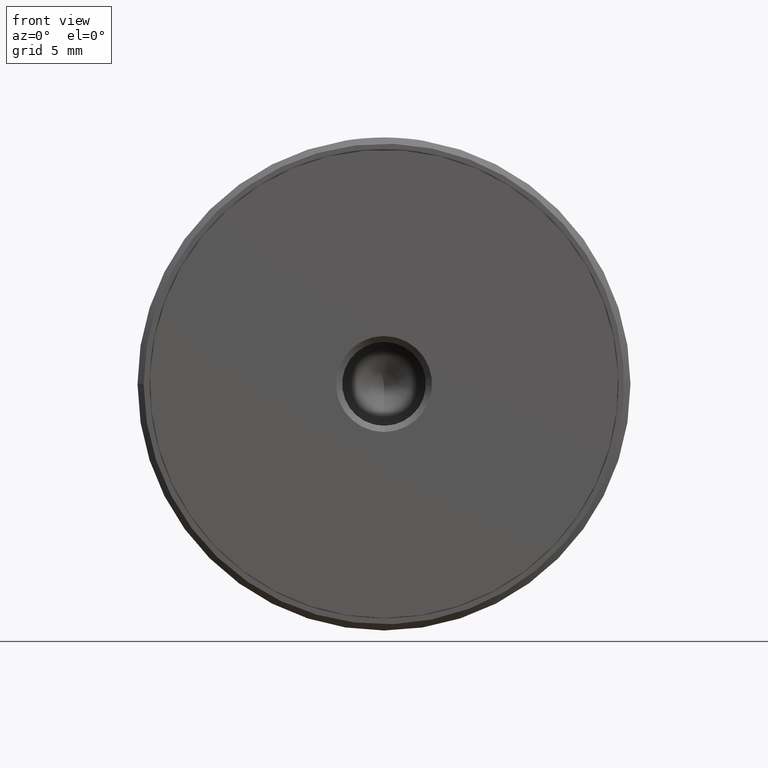
[diagram: clean part render]
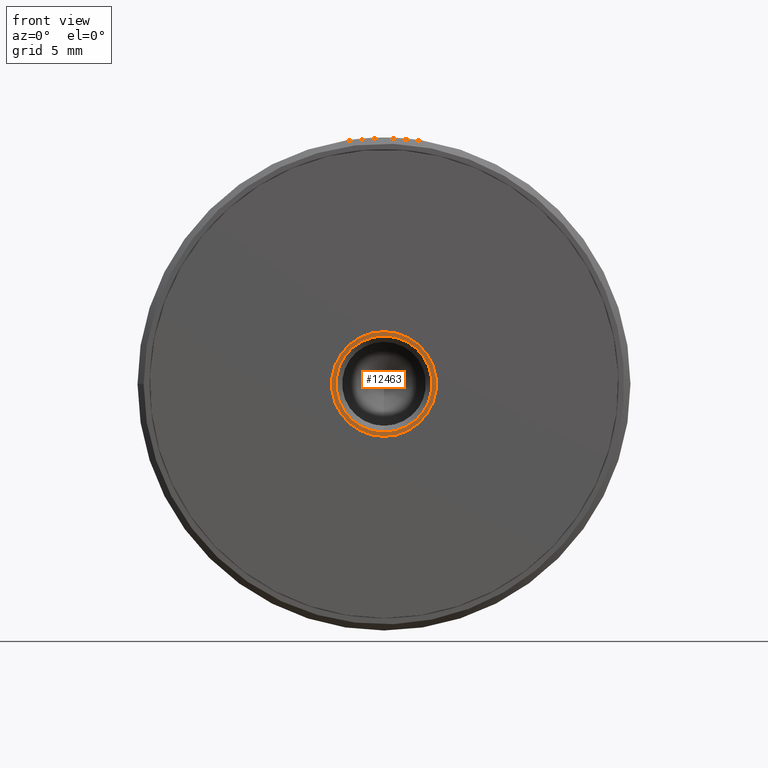
[diagram: same view with one face highlighted and labeled with its STEP entity id]
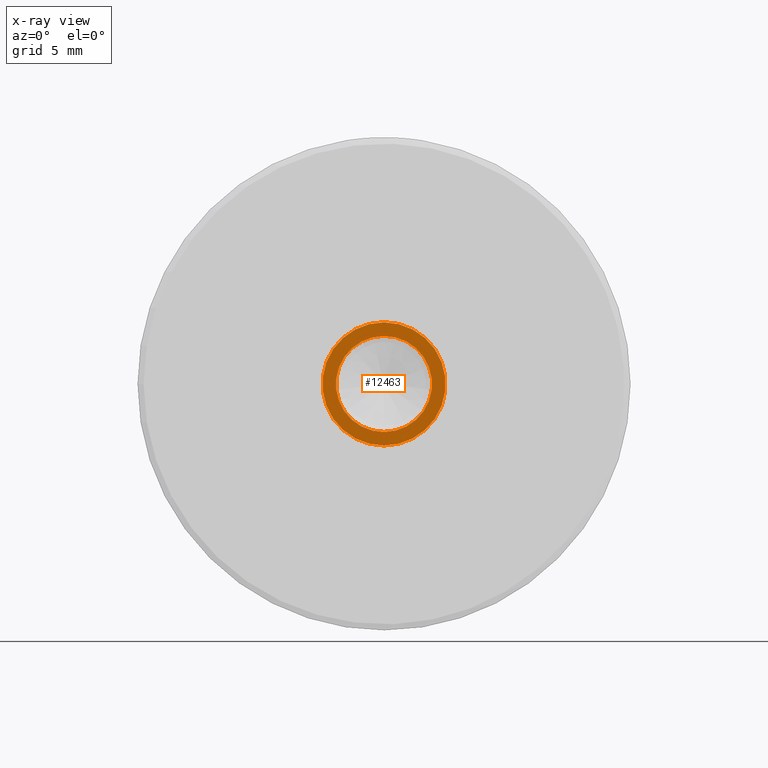
[diagram: x-ray of the same camera — body ghosted, the highlighted face saturated]
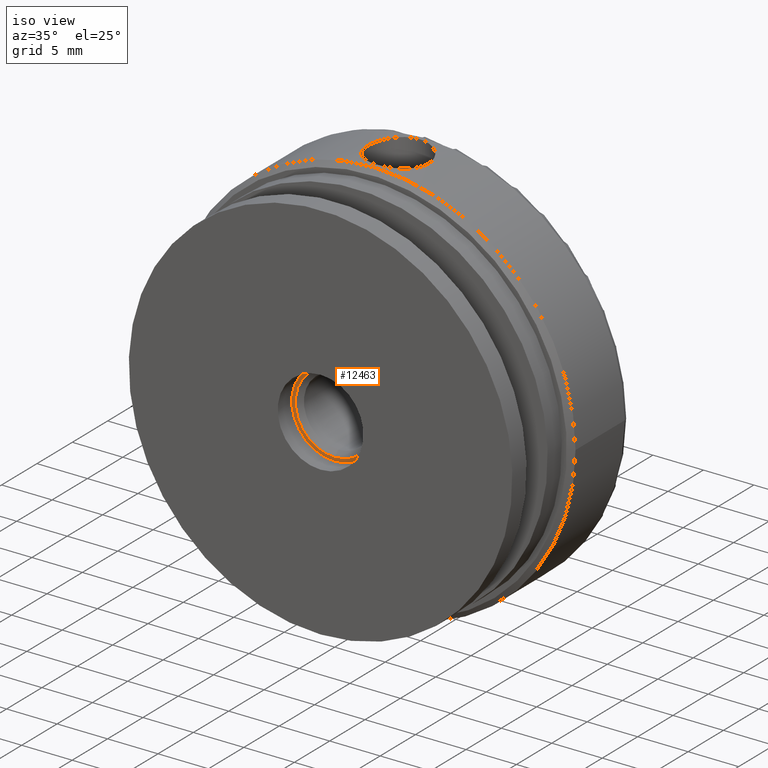
[diagram: same view with one face highlighted and labeled with its STEP entity id]
A machine part, front view. The second image highlights one B-rep face of the part: STEP entity #12463.
The next image is the same camera in x-ray: the body ghosted, the highlighted face saturated — about 0% of this face is hidden behind the body in this view.
A second angle (iso view) of the same face is appended — the face is thin or edge-on in the first view.
In plain terms, the highlighted planar face has unit normal (0, -1, 0).
Its self-contained STEP definition (entity closure, byte-faithful):
#933 = CARTESIAN_POINT ( 'NONE',  ( -6.938893903907228378E-15, -5.000000000000000888, 0.000000000000000000 ) ) ;
#1958 = FACE_BOUND ( 'NONE', #5551, .T. ) ;
#2099 = DIRECTION ( 'NONE',  ( 0.000000000000000000, 0.000000000000000000, -1.000000000000000000 ) ) ;
#2692 = VERTEX_POINT ( 'NONE', #10233 ) ;
#3429 = AXIS2_PLACEMENT_3D ( 'NONE', #9422, #7017, #8170 ) ;
#4329 = ORIENTED_EDGE ( 'NONE', *, *, #11467, .T. ) ;
#4687 = DIRECTION ( 'NONE',  ( -0.000000000000000000, 1.000000000000000000, -0.000000000000000000 ) ) ;
#4923 = AXIS2_PLACEMENT_3D ( 'NONE', #933, #4687, #2099 ) ;
#5131 = AXIS2_PLACEMENT_3D ( 'NONE', #15321, #9626, #8531 ) ;
#5550 = FACE_OUTER_BOUND ( 'NONE', #11149, .T. ) ;
#5551 = EDGE_LOOP ( 'NONE', ( #4329 ) ) ;
#5937 = CIRCLE ( 'NONE', #4923, 3.900000000000007017 ) ;
#7017 = DIRECTION ( 'NONE',  ( 0.000000000000000000, -1.000000000000000000, 0.000000000000000000 ) ) ;
#7043 = ORIENTED_EDGE ( 'NONE', *, *, #12432, .T. ) ;
#7837 = CARTESIAN_POINT ( 'NONE',  ( -6.938893903907228378E-15, -5.000000000000000888, -3.900000000000007017 ) ) ;
#8170 = DIRECTION ( 'NONE',  ( 0.000000000000000000, 0.000000000000000000, -1.000000000000000000 ) ) ;
#8531 = DIRECTION ( 'NONE',  ( 0.000000000000000000, -0.000000000000000000, -1.000000000000000000 ) ) ;
#9422 = CARTESIAN_POINT ( 'NONE',  ( -6.938893903907228378E-15, -5.000000000000000888, 0.000000000000000000 ) ) ;
#9626 = DIRECTION ( 'NONE',  ( 0.000000000000000000, -1.000000000000000000, 0.000000000000000000 ) ) ;
#9813 = VERTEX_POINT ( 'NONE', #7837 ) ;
#9843 = CIRCLE ( 'NONE', #3429, 4.999999999999997335 ) ;
#10233 = CARTESIAN_POINT ( 'NONE',  ( -6.938893903907228378E-15, -5.000000000000000888, -4.999999999999997335 ) ) ;
#11149 = EDGE_LOOP ( 'NONE', ( #7043 ) ) ;
#11467 = EDGE_CURVE ( 'NONE', #9813, #9813, #5937, .T. ) ;
#12432 = EDGE_CURVE ( 'NONE', #2692, #2692, #9843, .T. ) ;
#12463 = ADVANCED_FACE ( 'NONE', ( #1958, #5550 ), #14000, .T. ) ;
#14000 = PLANE ( 'NONE',  #5131 ) ;
#15321 = CARTESIAN_POINT ( 'NONE',  ( -6.938893903907228378E-15, -5.000000000000000888, 0.000000000000000000 ) ) ;